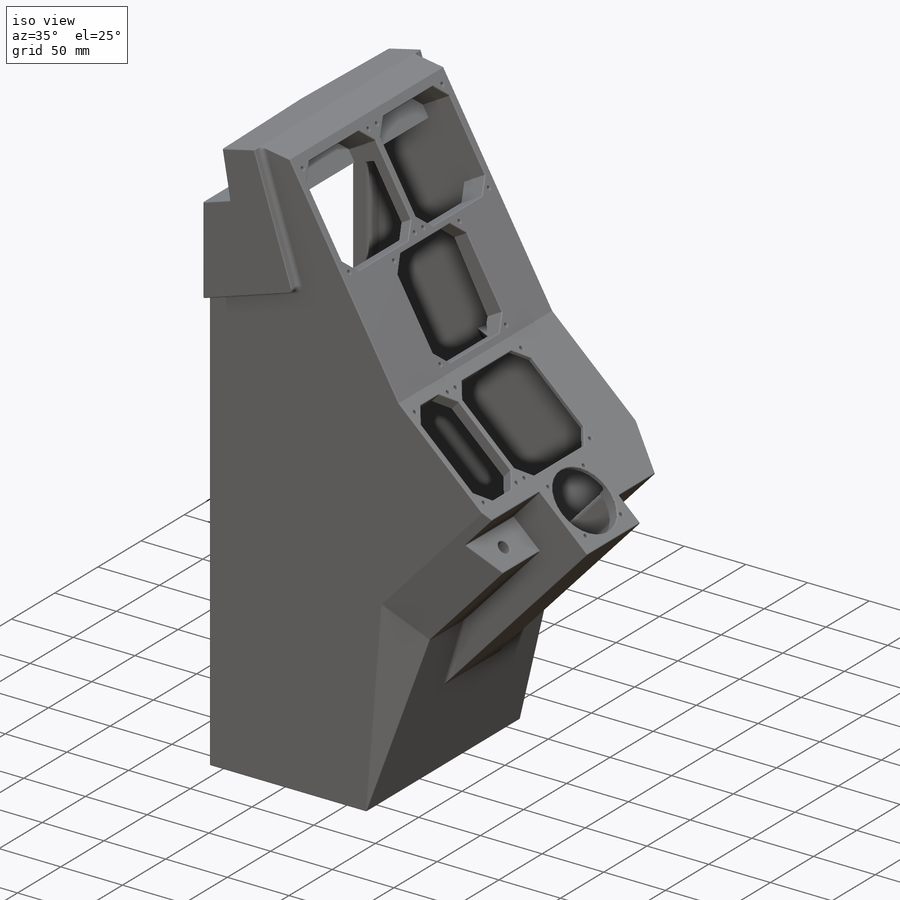
[diagram: iso view]
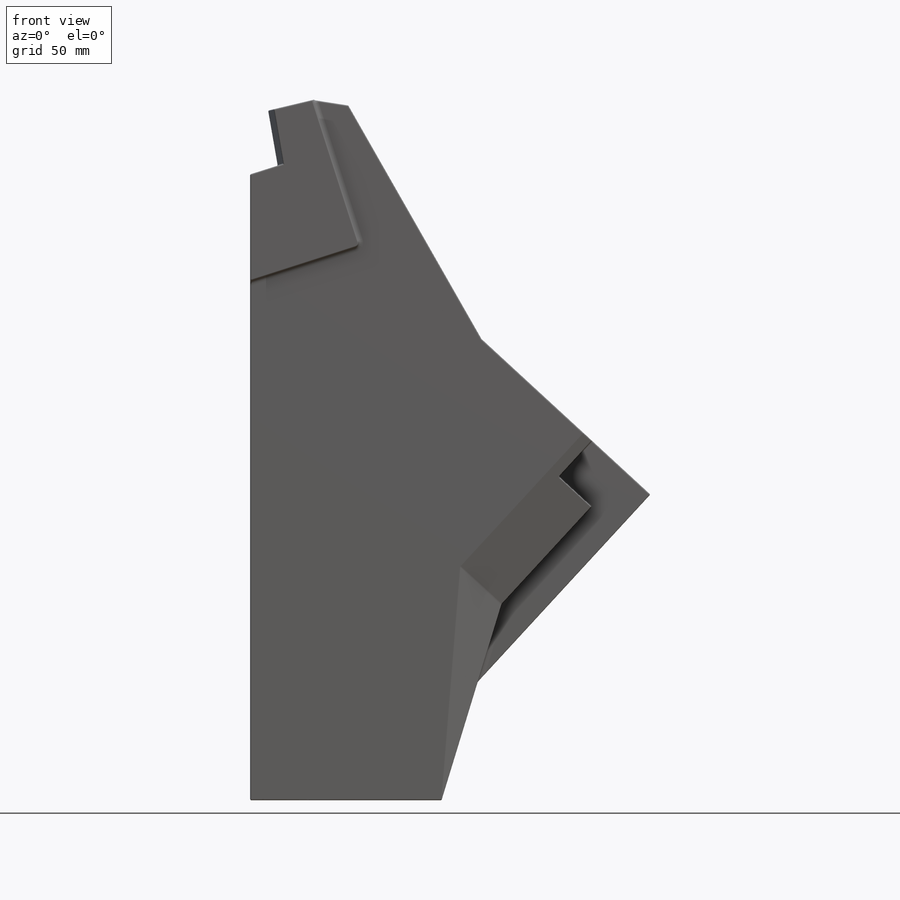
[diagram: front view]
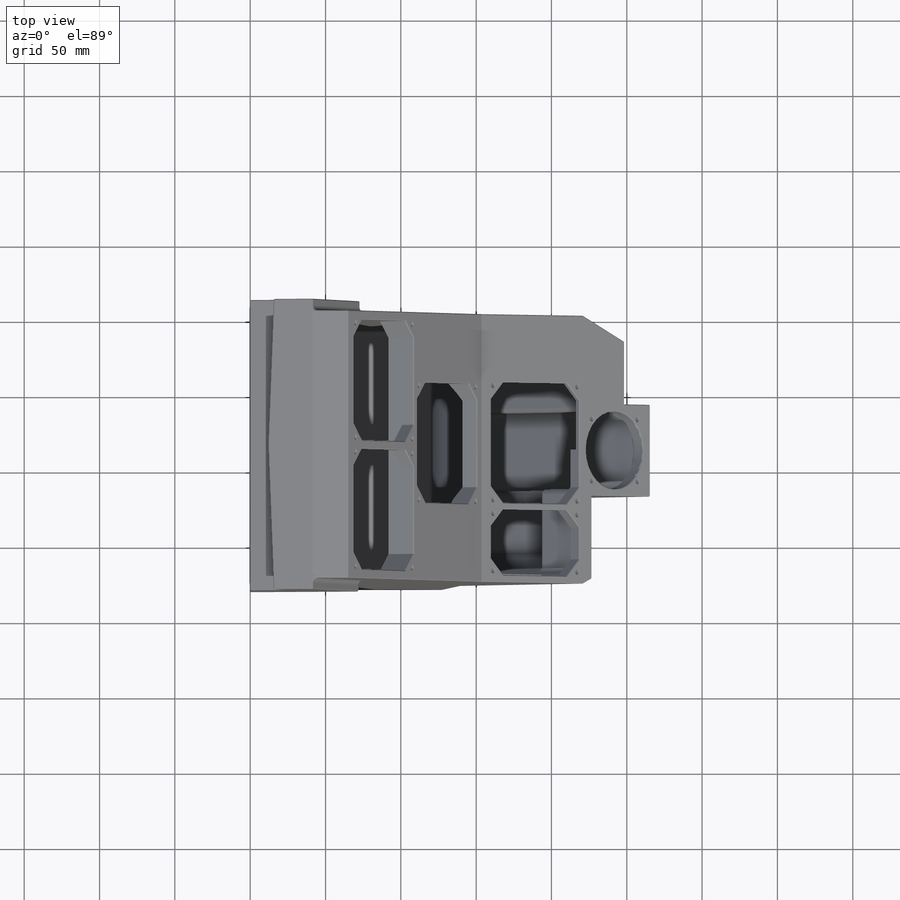
[diagram: top view]
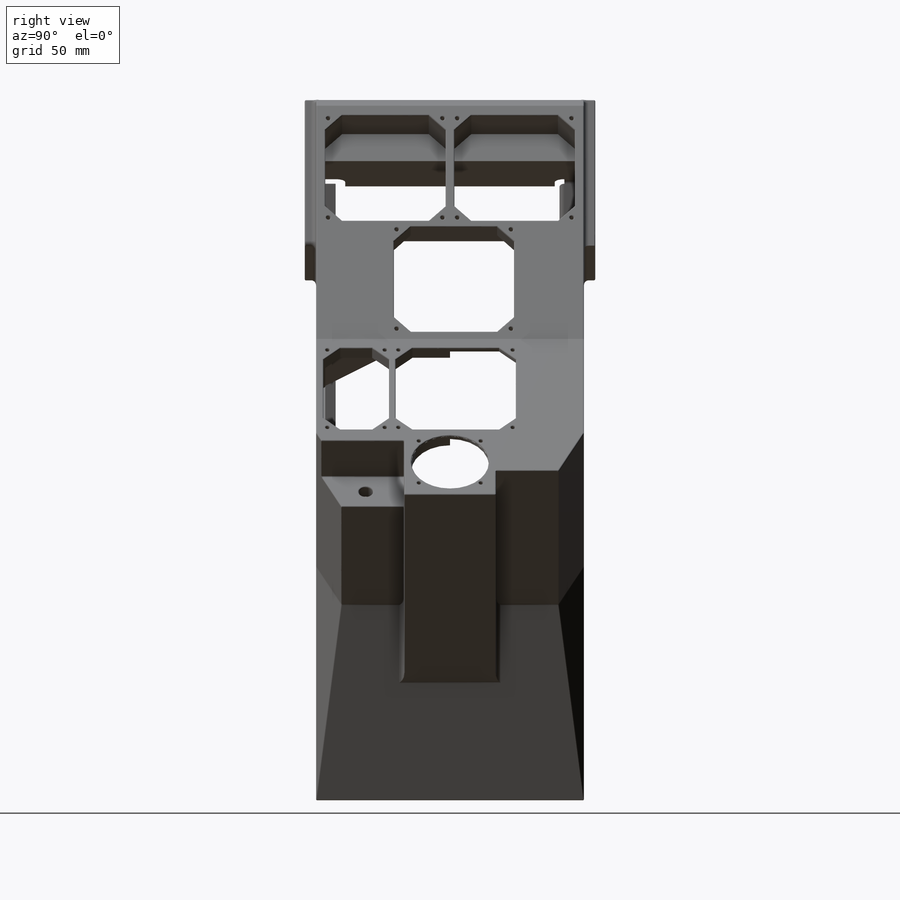
[diagram: right view]
SOLIDWORKS PART (.sldprt)
format: sldprt  version: not decoded by parser v0  size: 1,859,584 bytes
history: native  units: mm
features: sketch x36, cut_extrude x15, fillet x14, extrude x10, hole x3, chamfer x2, material x1, shell x1 (+16 scaffold rows collapsed)
feature tree (98):
  scaffold x16  (default folders/planes/origin — collapsed)
  material  "Material <not specified>"
  sketch  "Sketch1"  dims[c1.D1=127.0mm c1.D2=458.6986mm c1.D3=415.5059mm c1.D4=~40.069873mm c2.D4=72.55deg c2.D5=22.9616mm c2.D6=35.8267mm c2.D7=458.6986mm c3.D4=15.5956mm c3.D6=~39.769297mm c4.D6=97.65deg c4.D7=~37.823569mm c5.D7=97.65deg c6.D7=~37.823569mm c7.D7=97.65deg c8.D7=~37.143264mm c9.D7=93.55deg c9.D8=26.67mm c9.D9=~19.726498mm c10.D9=22.25deg c10.D10=23.8506mm c10.D11=~341.761148mm c11.D11=128.55deg c11.D12=178.4096mm c11.D13=~200.718123mm c12.D13=~142.929448deg c13.D13=~200.718123mm c14.D13=162.35deg c15.D13=~200.718123mm c16.D13=162.35deg c16.D14=152.4mm c16.D15=~141.653046mm c17.D15=107.0deg c17.D16=~82.190403mm]
  extrude  "Extrude1"  Depth=177.8mm
  sketch  "Sketch2"  dims[D1=30.48mm D2=30.48mm D3=41.656mm D4=41.656mm]
  sketch  "Sketch3"  dims[D1=23.3045mm]
  cut_extrude  "Extrude3"  [1 undecoded]
  sketch  "Sketch4"  dims[D1=37.084mm D2=37.084mm]
  sketch  "Sketch6"  dims[D1=0.0mm]
  cut_extrude  "Extrude4"  [1 undecoded]
  sketch  "Sketch7"
  cut_extrude  "Extrude5"  [1 undecoded]
  sketch  "Sketch8"  dims[D1=0.0mm]
  cut_extrude  "Extrude6"  [1 undecoded]
  sketch  "Sketch9"
  cut_extrude  "Extrude7"  [1 undecoded]
  sketch  "Sketch10"  dims[D1=29.4005mm]
  cut_extrude  "Extrude8"  Depth=32.4612mm
  shell  "Shell1"  Thickness=8.89mm
  sketch  "Sketch11"  dims[c1.D1=26.67mm c2.D1=94.4deg c2.D2=101.6mm]
  extrude  "Extrude9"  Depth=7.4803mm
  sketch  "Sketch12"  dims[D1=0.0mm]
  extrude  "Extrude10"  Depth=7.4803mm
  sketch  "Sketch13"  dims[D1=30.4419mm]
  extrude  "Extrude11"  [1 undecoded]
  sketch  "Sketch14"  dims[D1=74.0664mm D2=74.0664mm]
  sketch  "Sketch15"  dims[D1=17.0434mm]
  extrude  "Extrude15"  Depth=16.1798mm
  sketch  "Sketch16"  dims[D1=0.0mm]
  extrude  "Extrude17"  Depth=16.1798mm
  sketch  "Sketch18"  dims[D1=0.0mm]
  extrude  "Extrude18"  [1 undecoded]
  sketch  "Sketch19"  dims[D1=7.62mm D2=80.2005mm D3=79.8957mm D4=79.8957mm]
  cut_extrude  "Extrude19"  Depth=25.0825mm
  sketch  "Sketch20"  dims[D1=51.6636mm D2=79.6925mm D3=4.8768mm D4=79.883mm]
  cut_extrude  "Extrude20"  [1 undecoded]
  sketch  "Sketch21"  dims[D7=11.176mm D8=11.176mm D1=4.8768mm D2=43.5356mm D3=11.4046mm D4=79.4258mm]
  cut_extrude  "Extrude21"  Depth=25.9207mm
  sketch  "Sketch22"  dims[D1=4.3688mm D2=79.8322mm]
  cut_extrude  "Extrude22"  [1 undecoded]
  sketch  "Sketch23"  dims[D1=51.4731mm]
  cut_extrude  "Extrude23"  [1 undecoded]
  chamfer  "Chamfer2"  Distance=11.176mm Angle=45deg
  chamfer  "Chamfer3"  Distance=11.176mm Angle=45deg
  sketch  "Sketch24"
  extrude  "Extrude26"  Depth=19.3929mm
  sketch  "Sketch27"  dims[c1.D1=5.334mm c1.D2=2.54mm c1.D3=5.334mm c2.D1=5.334mm]
  extrude  "Extrude27"  [1 undecoded]
  sketch  "Sketch28"  dims[D1=0.0mm]
  cut_extrude  "Extrude28"  [1 undecoded]
  sketch  "Sketch34"  dims[D1=0.0mm]
  cut_extrude  "Extrude33"  [1 undecoded]
  sketch  "Sketch35"  dims[c1.D1=50.8mm c1.D2=50.8mm c1.D3=50.8mm c2.D3=45.0deg c2.D4=50.8mm c3.D4=45.0deg]
  extrude  "Extrude36"  Depth=6.35mm
  sketch  "Sketch36"
  cut_extrude  "Extrude37"  Depth=5.715mm
  sketch  "Sketch37"  dims[c1.D2=9.3726mm c1.D1=25.4mm c2.D2=12.7mm]
  cut_extrude  "Extrude38"  [1 undecoded]
  sketch  "Sketch38"  dims[D1=~37.94125mm D2=~37.94125mm D3=~37.94125mm D4=~37.94125mm D5=~37.94125mm D6=~37.94125mm D7=~37.94125mm D8=~37.94125mm D9=~37.94125mm D10=~37.94125mm]
  hole  "#5-40 Tapped Hole1"  Diameter=2.5781mm Depth=11.820358mm
  sketch  "3DSketch2"
  sketch  "Sketch40"  dims[hole-wizard template sketch: 59 standard entries collapsed; hole parameters kept: c18.Thread Major Dia.=2.5781mm c18.Thru Tap Drill Depth=~11.820358mm]
  hole  "#5-40 Tapped Hole2"  Diameter=2.5781mm Depth=12.7mm
  sketch  "3DSketch3"
  sketch  "Sketch41"  dims[hole-wizard template sketch: 46 standard entries collapsed; hole parameters kept: c15.Tap Drill Dia.=2.5781mm c15.Tap Drill Depth=12.7mm c15.D3=~14.816244mm c15.Drill Angle=118.0deg]
  sketch  "Sketch42"  dims[D1=~37.94125mm D2=~37.94125mm D3=~37.94125mm D4=~37.94125mm D5=~37.94125mm D6=~37.94125mm D7=19.05mm D8=19.05mm D9=~20.54225mm D10=~20.54225mm D11=~20.54225mm D12=~20.54225mm]
  hole  "#5-40 Tapped Hole3"  Diameter=2.5781mm Depth=8.89mm
  sketch  "3DSketch4"
  sketch  "Sketch43"  dims[hole-wizard template sketch: 59 standard entries collapsed; hole parameters kept: c18.Thread Major Dia.=2.5781mm c18.Thru Tap Drill Depth=8.89mm]
  fillet  "Fillet1"  Radius=3.175mm
  fillet  "Fillet4"  Radius=0.79375mm
  fillet  "Fillet5"  Radius=0.79375mm
  fillet  "Fillet7"  Radius=0.79375mm
  fillet  "Fillet9"  Radius=3.175mm
  fillet  "Fillet10"  Radius=0.79375mm
  fillet  "Fillet11"  Radius=0.79375mm
  fillet  "Fillet12"  Radius=0.79375mm
  fillet  "Fillet13"  Radius=3.175mm
  fillet  "Fillet14"  Radius=3.175mm
  fillet  "Fillet16"  Radius=3.175mm
  fillet  "Fillet18"  Radius=3.175mm
  fillet  "Fillet19"  Radius=3.175mm
  fillet  "Fillet20"  Radius=3.175mm
decode coverage: 60 of 81 modeling features carry decoded parameters
note: ~ marks probable driven/reference dimensions
note: 14 parameter values undecoded
summary: no parameter record found for 14 features
note: suppression state not decoded; provenance and decode notes live in map.json
